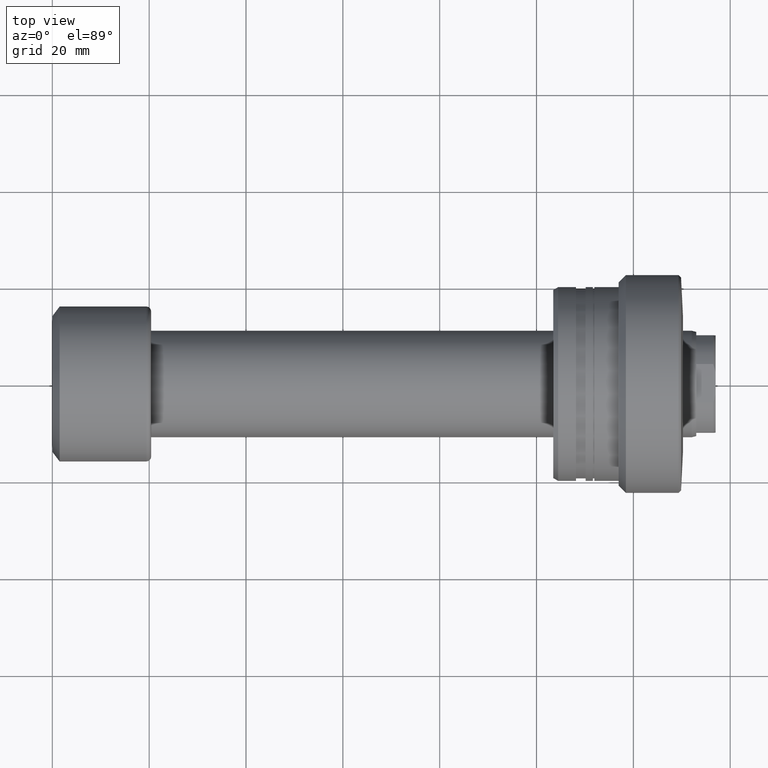
[diagram: clean part render]
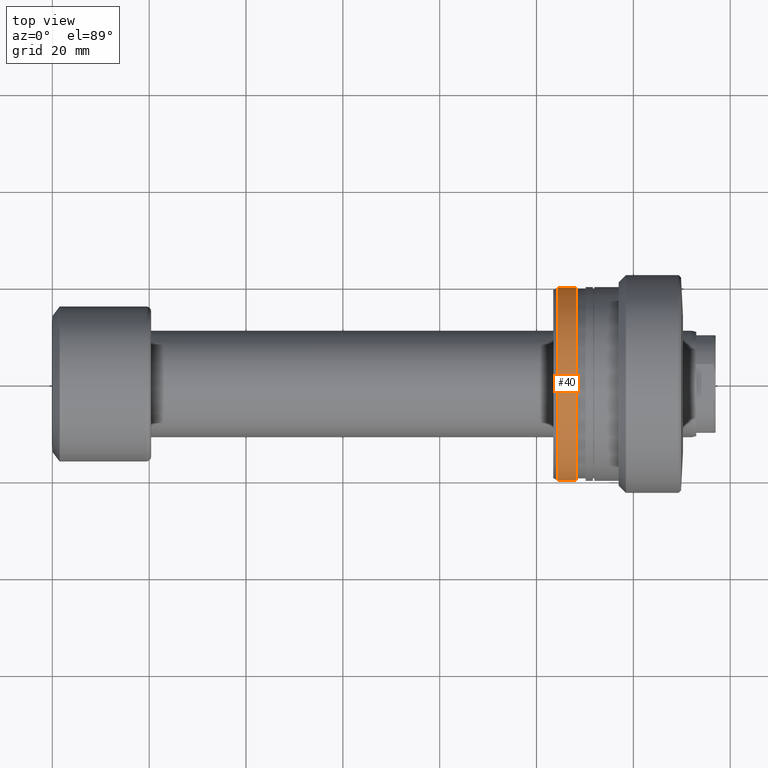
[diagram: same view with one face highlighted and labeled with its STEP entity id]
A machine part, top view. The second image highlights one B-rep face of the part: STEP entity #40.
In plain terms, the highlighted cylindrical surface (partial cylindrical patch) has radius 20 mm, axis along (-1, 0, 0).
Its self-contained STEP definition (entity closure, byte-faithful):
#13 = EDGE_CURVE ( 'NONE', #1622, #1213, #2375, .T. ) ;
#40 = ADVANCED_FACE ( 'NONE', ( #2199 ), #1843, .T. ) ;
#65 = EDGE_CURVE ( 'NONE', #1213, #1526, #2038, .T. ) ;
#147 = DIRECTION ( 'NONE',  ( -1.387778780781445873E-15, -1.000000000000000000, 0.000000000000000000 ) ) ;
#204 = DIRECTION ( 'NONE',  ( -1.000000000000000000, 1.333885945136072597E-15, -0.000000000000000000 ) ) ;
#236 = EDGE_CURVE ( 'NONE', #1622, #1251, #498, .T. ) ;
#498 = CIRCLE ( 'NONE', #577, 19.99999999999999289 ) ;
#533 = DIRECTION ( 'NONE',  ( -1.000000000000000000, 1.333885945136072597E-15, -0.000000000000000000 ) ) ;
#558 = ORIENTED_EDGE ( 'NONE', *, *, #236, .T. ) ;
#577 = AXIS2_PLACEMENT_3D ( 'NONE', #2186, #1164, #794 ) ;
#674 = CARTESIAN_POINT ( 'NONE',  ( -22.80878161770232637, 19.99999999999998224, 2.449293598294706119E-15 ) ) ;
#776 = CARTESIAN_POINT ( 'NONE',  ( -22.80878161770238322, -20.00000000000000355, 0.000000000000000000 ) ) ;
#794 = DIRECTION ( 'NONE',  ( -1.387778780781446267E-15, -1.000000000000000000, 0.000000000000000000 ) ) ;
#797 = CARTESIAN_POINT ( 'NONE',  ( -26.50000000000018119, -20.00000000000000355, 2.449293598294706513E-15 ) ) ;
#899 = VECTOR ( 'NONE', #1993, 1000.000000000000000 ) ;
#912 = CARTESIAN_POINT ( 'NONE',  ( -26.50000000000015277, -5.042119241098522056E-15, 0.000000000000000000 ) ) ;
#946 = EDGE_CURVE ( 'NONE', #1251, #1526, #2059, .T. ) ;
#1164 = DIRECTION ( 'NONE',  ( -1.000000000000000000, 1.333885945136072597E-15, -0.000000000000000000 ) ) ;
#1167 = ORIENTED_EDGE ( 'NONE', *, *, #13, .F. ) ;
#1213 = VERTEX_POINT ( 'NONE', #797 ) ;
#1251 = VERTEX_POINT ( 'NONE', #674 ) ;
#1272 = DIRECTION ( 'NONE',  ( -1.000000000000000000, 1.333885945136072597E-15, -0.000000000000000000 ) ) ;
#1343 = ORIENTED_EDGE ( 'NONE', *, *, #65, .F. ) ;
#1426 = EDGE_LOOP ( 'NONE', ( #558, #2217, #1343, #1167 ) ) ;
#1526 = VERTEX_POINT ( 'NONE', #1704 ) ;
#1622 = VERTEX_POINT ( 'NONE', #776 ) ;
#1664 = DIRECTION ( 'NONE',  ( -1.387778780781445676E-15, -1.000000000000000000, 0.000000000000000000 ) ) ;
#1704 = CARTESIAN_POINT ( 'NONE',  ( -26.50000000000012434, 19.99999999999999645, 0.000000000000000000 ) ) ;
#1722 = AXIS2_PLACEMENT_3D ( 'NONE', #2400, #1272, #147 ) ;
#1843 = CYLINDRICAL_SURFACE ( 'NONE', #1722, 19.99999999999999645 ) ;
#1993 = DIRECTION ( 'NONE',  ( -1.000000000000000000, 1.333885945136072597E-15, -0.000000000000000000 ) ) ;
#2038 = CIRCLE ( 'NONE', #2349, 20.00000000000000000 ) ;
#2059 = LINE ( 'NONE', #2441, #2320 ) ;
#2186 = CARTESIAN_POINT ( 'NONE',  ( -22.80878161770235479, -9.965783561673463636E-15, 0.000000000000000000 ) ) ;
#2199 = FACE_OUTER_BOUND ( 'NONE', #1426, .T. ) ;
#2217 = ORIENTED_EDGE ( 'NONE', *, *, #946, .T. ) ;
#2320 = VECTOR ( 'NONE', #204, 1000.000000000000000 ) ;
#2349 = AXIS2_PLACEMENT_3D ( 'NONE', #912, #533, #1664 ) ;
#2375 = LINE ( 'NONE', #2413, #899 ) ;
#2400 = CARTESIAN_POINT ( 'NONE',  ( -30.28002276692732408, 0.000000000000000000, 0.000000000000000000 ) ) ;
#2413 = CARTESIAN_POINT ( 'NONE',  ( -30.28002276692735251, -19.99999999999999645, 0.000000000000000000 ) ) ;
#2441 = CARTESIAN_POINT ( 'NONE',  ( -30.28002276692729566, 19.99999999999999645, 2.449293598294706119E-15 ) ) ;